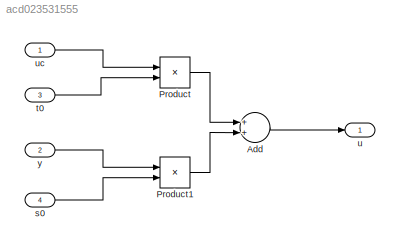
MODEL slx_acd023531555
KIND model
CONFIG AbsTol = auto
CONFIG EnableMultiTasking = off
CONFIG FixedStep = auto
CONFIG MaxStep = auto
CONFIG MinStep = auto
CONFIG RelTol = 1e-3
CONFIG SampleTimeConstraint = Unconstrained
CONFIG Solver = VariableStepAuto
CONFIG SolverName = VariableStepAuto
CONFIG StartTime = 0.0
CONFIG StopTime = 10.0
BLOCK [Sum] Add
  InputSameDT = off
  OutDataTypeStr = Inherit: Inherit via internal rule
  Ports = [2, 1]
  SaturateOnIntegerOverflow = off
BLOCK [Product] Product
  InputSameDT = off
  OutDataTypeStr = Inherit: Inherit via internal rule
  Ports = [2, 1]
  RndMeth = Floor
  SaturateOnIntegerOverflow = off
BLOCK [Product] Product1
  InputSameDT = off
  OutDataTypeStr = Inherit: Inherit via internal rule
  Ports = [2, 1]
  RndMeth = Floor
  SaturateOnIntegerOverflow = off
BLOCK [Inport] s0
  IconDisplay = Port number
  Port = 4
BLOCK [Inport] t0
  IconDisplay = Port number
  Port = 3
BLOCK [Outport] u
  IconDisplay = Port number
BLOCK [Inport] uc
  IconDisplay = Port number
BLOCK [Inport] y
  IconDisplay = Port number
  Port = 2
LINE Add:1 -> u:1
LINE Product1:1 -> Add:2
LINE Product:1 -> Add:1
LINE s0:1 -> Product1:2
LINE t0:1 -> Product:2
LINE uc:1 -> Product:1
LINE y:1 -> Product1:1
